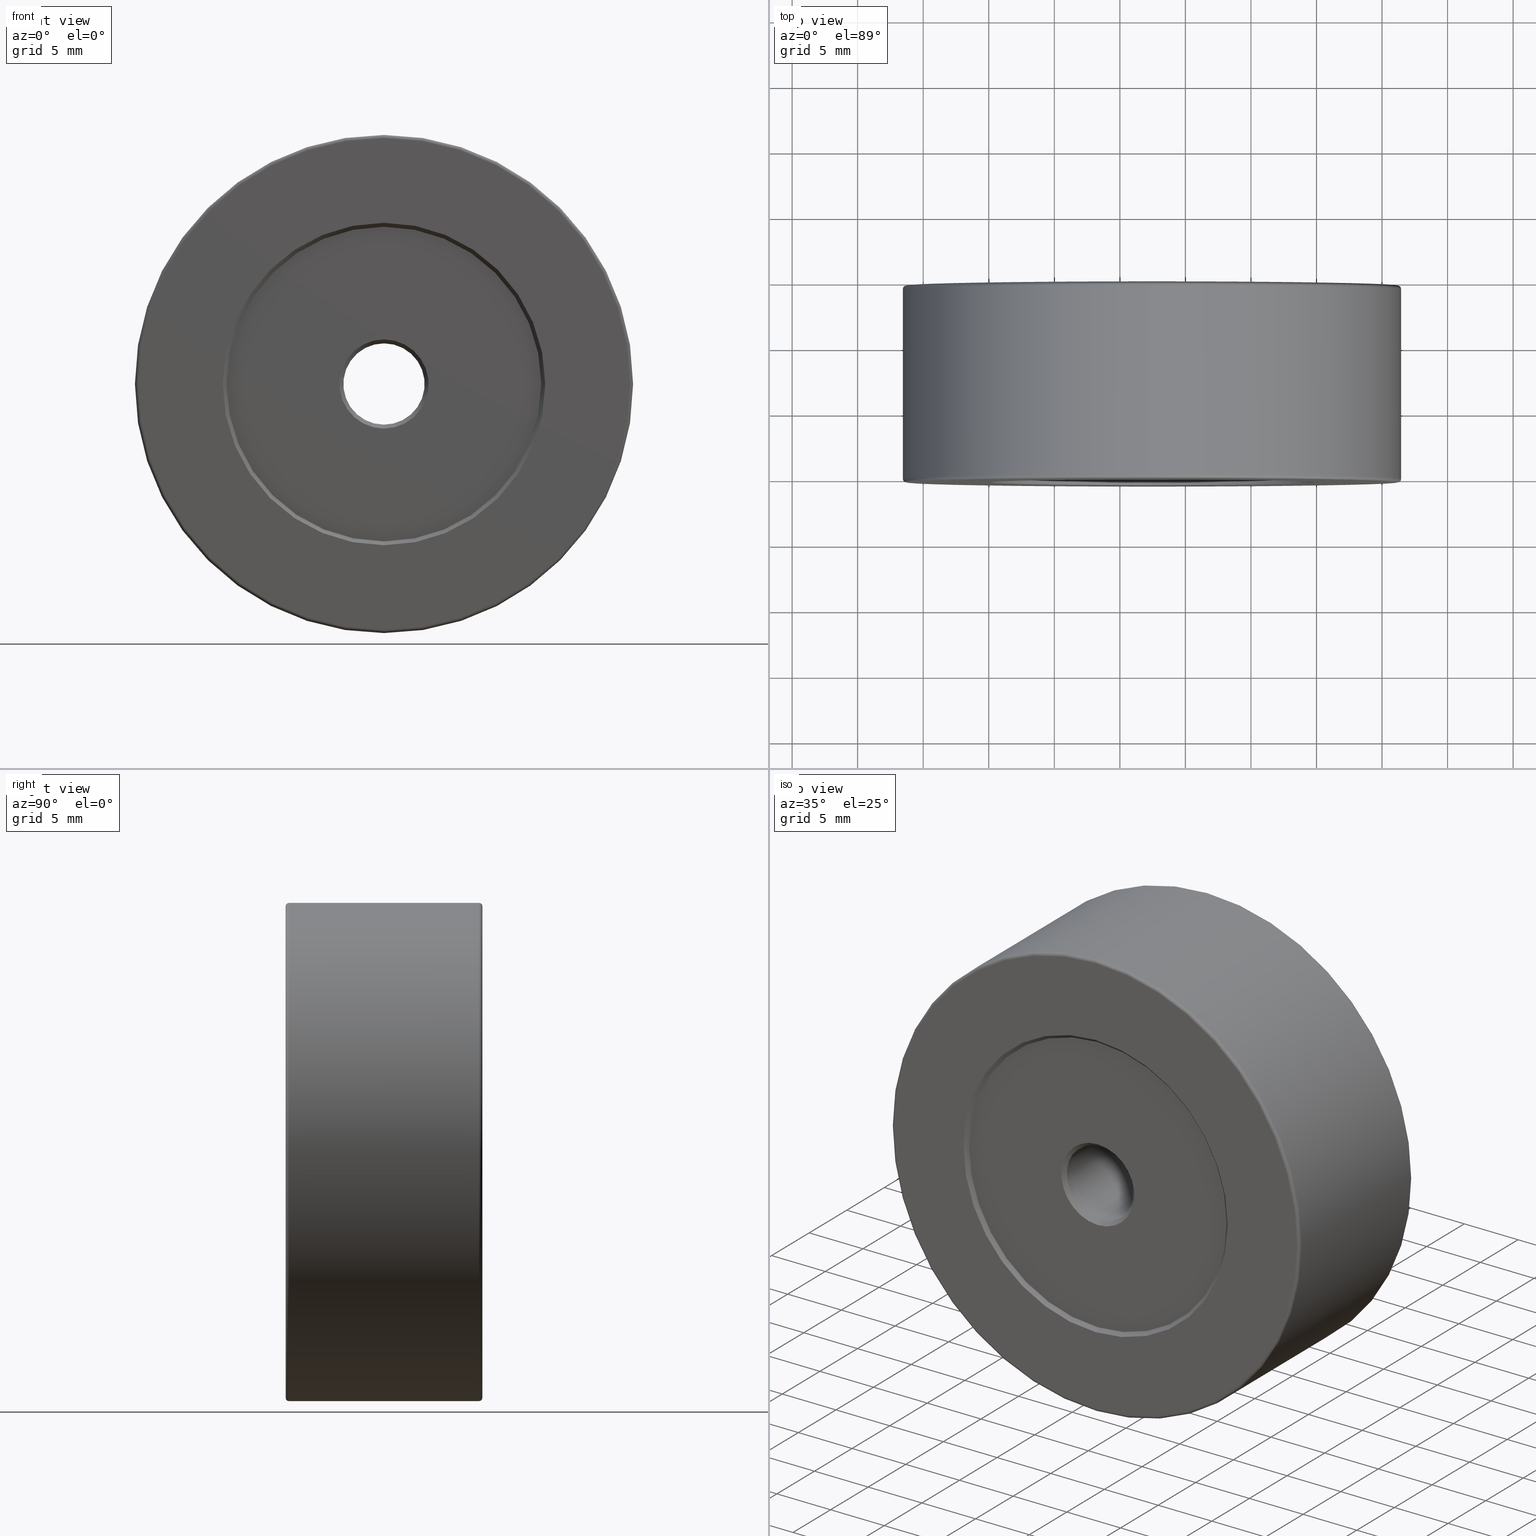
[diagram: canonical four-view strip — front | top / right | iso, engineering-drawing reading convention]
A machine part, canonical four-view strip (front | top / right | iso — engineering-drawing reading convention). The complete STEP part file that produces these views, byte-faithful:
ISO-10303-21;
HEADER;
FILE_DESCRIPTION (( 'STEP AP203' ),
    '1' );
FILE_NAME ('1.4.2.124_ZGH-38-DK15.STEP',
    '2024-04-06T05:22:27',
    ( '' ),
    ( '' ),
    'SwSTEP 2.0',
    'SolidWorks 2021',
    '' );
FILE_SCHEMA (( 'CONFIG_CONTROL_DESIGN' ));
ENDSEC;

DATA;
#1 = ADVANCED_FACE ( 'NONE', ( #130 ), #344, .T. ) ;
#2 = ORIENTED_EDGE ( 'NONE', *, *, #85, .T. ) ;
#3 = FACE_BOUND ( 'NONE', #104, .T. ) ;
#4 = DIRECTION ( 'NONE',  ( -0.000000000000000000, -1.000000000000000000, -0.000000000000000000 ) ) ;
#5 = ORIENTED_EDGE ( 'NONE', *, *, #519, .F. ) ;
#6 = AXIS2_PLACEMENT_3D ( 'NONE', #60, #158, #248 ) ;
#7 = CONICAL_SURFACE ( 'NONE', #289, 12.29999999999999893, 0.7853981633974453924 ) ;
#8 = COORDINATED_UNIVERSAL_TIME_OFFSET ( 8, 0, .AHEAD. ) ;
#9 = AXIS2_PLACEMENT_3D ( 'NONE', #428, #430, #478 ) ;
#10 = ORIENTED_EDGE ( 'NONE', *, *, #272, .F. ) ;
#11 = ADVANCED_FACE ( 'NONE', ( #603 ), #141, .F. ) ;
#12 = CARTESIAN_POINT ( 'NONE',  ( -7.546808913101046734, -10.39359512730272783, 50.29999999999999716 ) ) ;
#13 = DIRECTION ( 'NONE',  ( 0.000000000000000000, 0.000000000000000000, 1.000000000000000000 ) ) ;
#14 = EDGE_LOOP ( 'NONE', ( #203, #436, #388, #584 ) ) ;
#15 = EDGE_CURVE ( 'NONE', #194, #55, #83, .T. ) ;
#16 = AXIS2_PLACEMENT_3D ( 'NONE', #62, #200, #52 ) ;
#17 = DIRECTION ( 'NONE',  ( 0.000000000000000000, 0.000000000000000000, 1.000000000000000000 ) ) ;
#18 = EDGE_CURVE ( 'NONE', #72, #259, #290, .T. ) ;
#19 = EDGE_LOOP ( 'NONE', ( #75, #21, #278, #564 ) ) ;
#20 = CARTESIAN_POINT ( 'NONE',  ( -7.546808913101045846, 4.356404872697271280, 19.25000000000000000 ) ) ;
#21 = ORIENTED_EDGE ( 'NONE', *, *, #611, .T. ) ;
#22 = LINE ( 'NONE', #539, #404 ) ;
#23 = LINE ( 'NONE', #294, #407 ) ;
#24 = EDGE_LOOP ( 'NONE', ( #442, #463, #598, #10 ) ) ;
#25 = CARTESIAN_POINT ( 'NONE',  ( -7.546808913101048510, -10.39359512730272783, 38.00000000000000000 ) ) ;
#26 = AXIS2_PLACEMENT_3D ( 'NONE', #87, #80, #276 ) ;
#27 = CIRCLE ( 'NONE', #128, 0.2500000000000002220 ) ;
#28 = VERTEX_POINT ( 'NONE', #605 ) ;
#29 = CARTESIAN_POINT ( 'NONE',  ( -7.546808913101048510, 4.306404872697271458, 41.39999999999999147 ) ) ;
#30 = DIRECTION ( 'NONE',  ( -1.000000000000000000, 0.000000000000000000, 0.000000000000000000 ) ) ;
#31 = EDGE_CURVE ( 'NONE', #122, #432, #411, .T. ) ;
#32 = DIRECTION ( 'NONE',  ( 0.000000000000000000, 1.000000000000000000, 0.000000000000000000 ) ) ;
#33 = COORDINATED_UNIVERSAL_TIME_OFFSET ( 8, 0, .AHEAD. ) ;
#34 = DIRECTION ( 'NONE',  ( -0.000000000000000000, -1.000000000000000000, -0.000000000000000000 ) ) ;
#35 = DIRECTION ( 'NONE',  ( 0.000000000000000000, -0.7071067811865470176, -0.7071067811865480168 ) ) ;
#36 = COORDINATED_UNIVERSAL_TIME_OFFSET ( 8, 0, .AHEAD. ) ;
#37 = CARTESIAN_POINT ( 'NONE',  ( -7.546808913101048510, 4.606404872697272168, 38.00000000000000000 ) ) ;
#38 = VECTOR ( 'NONE', #195, 1000.000000000000000 ) ;
#39 = ORIENTED_EDGE ( 'NONE', *, *, #66, .F. ) ;
#40 = AXIS2_PLACEMENT_3D ( 'NONE', #364, #4, #472 ) ;
#41 = DIRECTION ( 'NONE',  ( 0.000000000000000000, 0.000000000000000000, 1.000000000000000000 ) ) ;
#42 = CARTESIAN_POINT ( 'NONE',  ( -7.546808913101048510, 4.606404872697272168, 19.00000000000000000 ) ) ;
#43 = PERSON_AND_ORGANIZATION ( #479, #484 ) ;
#44 = DIRECTION ( 'NONE',  ( 0.000000000000000000, -1.000000000000000000, 0.000000000000000000 ) ) ;
#45 = EDGE_CURVE ( 'NONE', #594, #370, #486, .T. ) ;
#46 = CIRCLE ( 'NONE', #98, 12.00000000000000355 ) ;
#47 = ORIENTED_EDGE ( 'NONE', *, *, #115, .F. ) ;
#48 = CARTESIAN_POINT ( 'NONE',  ( -7.546808913101045846, -10.39359512730272783, 19.25000000000000000 ) ) ;
#49 = ORIENTED_EDGE ( 'NONE', *, *, #325, .T. ) ;
#50 = DIRECTION ( 'NONE',  ( 0.000000000000000000, -0.000000000000000000, 1.000000000000000000 ) ) ;
#51 = ORIENTED_EDGE ( 'NONE', *, *, #499, .F. ) ;
#52 = DIRECTION ( 'NONE',  ( 0.000000000000000000, 0.000000000000000000, -1.000000000000000000 ) ) ;
#53 = EDGE_CURVE ( 'NONE', #110, #72, #133, .T. ) ;
#54 = ADVANCED_FACE ( 'NONE', ( #184 ), #359, .T. ) ;
#55 = VERTEX_POINT ( 'NONE', #563 ) ;
#56 = CONICAL_SURFACE ( 'NONE', #559, 12.00000000000000355, 0.7853981633974482790 ) ;
#57 = AXIS2_PLACEMENT_3D ( 'NONE', #198, #493, #571 ) ;
#58 = CARTESIAN_POINT ( 'NONE',  ( -7.546808913101048510, 4.006404872697271635, 34.89999999999999858 ) ) ;
#59 = LOCAL_TIME ( 13, 22, 27.00000000000000000, #548 ) ;
#60 = CARTESIAN_POINT ( 'NONE',  ( -7.546808913101045846, -10.14359512730272783, 19.25000000000000000 ) ) ;
#61 = TOROIDAL_SURFACE ( 'NONE', #460, 18.75000000000000000, 0.2500000000000000000 ) ;
#62 = CARTESIAN_POINT ( 'NONE',  ( -7.546808913101048510, -10.09359512730272712, 38.00000000000000000 ) ) ;
#63 = CARTESIAN_POINT ( 'NONE',  ( -7.546808913101048510, -10.09359512730272712, 38.00000000000000000 ) ) ;
#64 = ORIENTED_EDGE ( 'NONE', *, *, #282, .T. ) ;
#65 = DIRECTION ( 'NONE',  ( -0.000000000000000000, -1.000000000000000000, -0.000000000000000000 ) ) ;
#66 = EDGE_CURVE ( 'NONE', #438, #259, #23, .T. ) ;
#67 = ORIENTED_EDGE ( 'NONE', *, *, #375, .T. ) ;
#68 = LOCAL_TIME ( 13, 22, 27.00000000000000000, #36 ) ;
#69 = DESIGN_CONTEXT ( 'detailed design', #112, 'design' ) ;
#70 = ORIENTED_EDGE ( 'NONE', *, *, #135, .T. ) ;
#71 = DIRECTION ( 'NONE',  ( 0.000000000000000000, 0.000000000000000000, 1.000000000000000000 ) ) ;
#72 = VERTEX_POINT ( 'NONE', #154 ) ;
#73 = APPLICATION_PROTOCOL_DEFINITION ( 'international standard', 'config_control_design', 1994, #253 ) ;
#74 = LINE ( 'NONE', #357, #356 ) ;
#75 = ORIENTED_EDGE ( 'NONE', *, *, #339, .F. ) ;
#76 = CYLINDRICAL_SURFACE ( 'NONE', #577, 3.099999999999998757 ) ;
#77 = EDGE_CURVE ( 'NONE', #345, #351, #394, .T. ) ;
#78 = CARTESIAN_POINT ( 'NONE',  ( -7.546808913101048510, 4.306404872697287445, 50.00000000000000000 ) ) ;
#79 = AXIS2_PLACEMENT_3D ( 'NONE', #280, #145, #562 ) ;
#80 = DIRECTION ( 'NONE',  ( -0.000000000000000000, 1.000000000000000000, -0.000000000000000000 ) ) ;
#81 = DATE_TIME_ROLE ( 'classification_date' ) ;
#82 = FACE_OUTER_BOUND ( 'NONE', #550, .T. ) ;
#83 = LINE ( 'NONE', #553, #288 ) ;
#84 = APPROVAL_ROLE ( '' ) ;
#85 = EDGE_CURVE ( 'NONE', #426, #372, #377, .T. ) ;
#86 = CARTESIAN_POINT ( 'NONE',  ( -7.546808913101045846, 4.606404872697272168, 19.25000000000000000 ) ) ;
#87 = CARTESIAN_POINT ( 'NONE',  ( -7.546808913101048510, -10.39359512730272783, 38.00000000000000000 ) ) ;
#88 = DIRECTION ( 'NONE',  ( 0.000000000000000000, 1.000000000000000000, 0.000000000000000000 ) ) ;
#89 = AXIS2_PLACEMENT_3D ( 'NONE', #269, #32, #453 ) ;
#90 = AXIS2_PLACEMENT_3D ( 'NONE', #363, #555, #191 ) ;
#91 = DIRECTION ( 'NONE',  ( -0.000000000000000000, -1.000000000000000000, -0.000000000000000000 ) ) ;
#92 = AXIS2_PLACEMENT_3D ( 'NONE', #459, #174, #395 ) ;
#93 = DIRECTION ( 'NONE',  ( -0.000000000000000000, 1.000000000000000000, -0.000000000000000000 ) ) ;
#94 = ORIENTED_EDGE ( 'NONE', *, *, #272, .T. ) ;
#95 = APPROVAL_DATE_TIME ( #314, #358 ) ;
#96 = DIRECTION ( 'NONE',  ( 0.000000000000000000, -0.000000000000000000, 1.000000000000000000 ) ) ;
#97 = CARTESIAN_POINT ( 'NONE',  ( -7.546808913101048510, 4.606404872697272168, 38.00000000000000000 ) ) ;
#98 = AXIS2_PLACEMENT_3D ( 'NONE', #540, #494, #264 ) ;
#99 = PLANE ( 'NONE',  #447 ) ;
#100 = EDGE_CURVE ( 'NONE', #370, #594, #142, .T. ) ;
#101 = CARTESIAN_POINT ( 'NONE',  ( -7.546808913101048510, -10.09359512730272712, 38.00000000000000000 ) ) ;
#102 = ADVANCED_FACE ( 'NONE', ( #205 ), #61, .T. ) ;
#103 = LINE ( 'NONE', #12, #511 ) ;
#104 = EDGE_LOOP ( 'NONE', ( #67, #212 ) ) ;
#105 = AXIS2_PLACEMENT_3D ( 'NONE', #208, #162, #342 ) ;
#106 = TOROIDAL_SURFACE ( 'NONE', #546, 18.75000000000000000, 0.2500000000000000000 ) ;
#107 = DIRECTION ( 'NONE',  ( 0.000000000000000000, 1.000000000000000000, 0.000000000000000000 ) ) ;
#108 = DIRECTION ( 'NONE',  ( 0.000000000000000000, 1.000000000000000000, 0.000000000000000000 ) ) ;
#109 = AXIS2_PLACEMENT_3D ( 'NONE', #387, #572, #201 ) ;
#110 = VERTEX_POINT ( 'NONE', #578 ) ;
#111 = EDGE_CURVE ( 'NONE', #516, #576, #508, .T. ) ;
#112 = APPLICATION_CONTEXT ( 'configuration controlled 3d designs of mechanical parts and assemblies' ) ;
#113 = DIRECTION ( 'NONE',  ( -0.000000000000000000, 1.000000000000000000, -0.000000000000000000 ) ) ;
#114 = ORIENTED_EDGE ( 'NONE', *, *, #45, .T. ) ;
#115 = EDGE_CURVE ( 'NONE', #361, #372, #103, .T. ) ;
#116 = CARTESIAN_POINT ( 'NONE',  ( -7.546808913101048510, -9.793595127302728187, 38.00000000000000000 ) ) ;
#117 = ORIENTED_EDGE ( 'NONE', *, *, #220, .T. ) ;
#118 = AXIS2_PLACEMENT_3D ( 'NONE', #171, #350, #306 ) ;
#119 = CIRCLE ( 'NONE', #242, 0.2500000000000002220 ) ;
#120 = ORIENTED_EDGE ( 'NONE', *, *, #368, .T. ) ;
#121 = CARTESIAN_POINT ( 'NONE',  ( -7.546808913101046734, -10.09359512730272712, 50.00000000000000000 ) ) ;
#122 = VERTEX_POINT ( 'NONE', #583 ) ;
#123 = DIRECTION ( 'NONE',  ( 0.000000000000000000, 0.000000000000000000, 1.000000000000000000 ) ) ;
#124 = CARTESIAN_POINT ( 'NONE',  ( -7.546808913101048510, 4.356404872697271280, 38.00000000000000000 ) ) ;
#125 = ORIENTED_EDGE ( 'NONE', *, *, #401, .T. ) ;
#126 = APPLICATION_PROTOCOL_DEFINITION ( 'international standard', 'config_control_design', 1994, #112 ) ;
#127 = DIRECTION ( 'NONE',  ( -0.000000000000000000, -1.000000000000000000, -0.000000000000000000 ) ) ;
#128 = AXIS2_PLACEMENT_3D ( 'NONE', #448, #30, #469 ) ;
#129 = ADVANCED_FACE ( 'NONE', ( #526 ), #275, .F. ) ;
#130 = FACE_OUTER_BOUND ( 'NONE', #308, .T. ) ;
#131 = EDGE_CURVE ( 'NONE', #467, #72, #347, .T. ) ;
#132 = LINE ( 'NONE', #78, #261 ) ;
#133 = LINE ( 'NONE', #42, #608 ) ;
#134 = PERSON_AND_ORGANIZATION_ROLE ( 'classification_officer' ) ;
#135 = EDGE_CURVE ( 'NONE', #438, #110, #217, .T. ) ;
#136 = DIRECTION ( 'NONE',  ( 0.000000000000000000, 0.000000000000000000, 1.000000000000000000 ) ) ;
#137 = CARTESIAN_POINT ( 'NONE',  ( -7.546808913101048510, -10.09359512730272712, 34.60000000000000142 ) ) ;
#138 = DIRECTION ( 'NONE',  ( 0.000000000000000000, 0.000000000000000000, -1.000000000000000000 ) ) ;
#139 = CONICAL_SURFACE ( 'NONE', #105, 3.400000000000000355, 0.7853981633974490562 ) ;
#140 = AXIS2_PLACEMENT_3D ( 'NONE', #566, #147, #585 ) ;
#141 = CYLINDRICAL_SURFACE ( 'NONE', #26, 3.099999999999998757 ) ;
#142 = CIRCLE ( 'NONE', #148, 3.399999999999993250 ) ;
#143 = CC_DESIGN_DATE_AND_TIME_ASSIGNMENT ( #599, #144, ( #193 ) ) ;
#144 = DATE_TIME_ROLE ( 'creation_date' ) ;
#145 = DIRECTION ( 'NONE',  ( 0.000000000000000000, 1.000000000000000000, 0.000000000000000000 ) ) ;
#146 = ORIENTED_EDGE ( 'NONE', *, *, #31, .F. ) ;
#147 = DIRECTION ( 'NONE',  ( -0.000000000000000000, -1.000000000000000000, -0.000000000000000000 ) ) ;
#148 = AXIS2_PLACEMENT_3D ( 'NONE', #301, #331, #13 ) ;
#149 = FACE_OUTER_BOUND ( 'NONE', #218, .T. ) ;
#150 = EDGE_CURVE ( 'NONE', #110, #351, #119, .T. ) ;
#151 = SHELL_BASED_SURFACE_MODEL ( 'NONE', ( #415 ) );
#152 = DIRECTION ( 'NONE',  ( 0.000000000000000000, 1.000000000000000000, 0.000000000000000000 ) ) ;
#153 = DIRECTION ( 'NONE',  ( 8.659560562354837948E-17, 0.7071067811865552333, -0.7071067811865398012 ) ) ;
#154 = CARTESIAN_POINT ( 'NONE',  ( -7.546808913101048510, -10.14359512730272783, 19.00000000000000000 ) ) ;
#155 = ADVANCED_FACE ( 'NONE', ( #340 ), #56, .F. ) ;
#156 = VERTEX_POINT ( 'NONE', #246 ) ;
#157 = VECTOR ( 'NONE', #93, 1000.000000000000000 ) ;
#158 = DIRECTION ( 'NONE',  ( 1.000000000000000000, -0.000000000000000000, 1.224646799147353207E-16 ) ) ;
#159 = ORIENTED_EDGE ( 'NONE', *, *, #77, .T. ) ;
#160 = DIRECTION ( 'NONE',  ( 0.000000000000000000, 0.000000000000000000, -1.000000000000000000 ) ) ;
#161 = ORIENTED_EDGE ( 'NONE', *, *, #18, .T. ) ;
#162 = DIRECTION ( 'NONE',  ( -0.000000000000000000, -1.000000000000000000, -0.000000000000000000 ) ) ;
#163 = ORIENTED_EDGE ( 'NONE', *, *, #443, .F. ) ;
#164 = VECTOR ( 'NONE', #35, 1000.000000000000000 ) ;
#165 = CIRCLE ( 'NONE', #90, 12.29999999999998472 ) ;
#166 = CARTESIAN_POINT ( 'NONE',  ( -7.546808913101048510, -10.09359512730272712, 25.99999999999999645 ) ) ;
#167 = CC_DESIGN_APPROVAL ( #358, ( #435 ) ) ;
#168 = CIRCLE ( 'NONE', #245, 3.099999999999998757 ) ;
#169 = EDGE_LOOP ( 'NONE', ( #240, #541, #229, #535 ) ) ;
#170 = DATE_AND_TIME ( #332, #204 ) ;
#171 = CARTESIAN_POINT ( 'NONE',  ( -7.546808913101048510, 4.606404872697272168, 38.00000000000000000 ) ) ;
#172 = EDGE_LOOP ( 'NONE', ( #305, #64 ) ) ;
#173 = DIRECTION ( 'NONE',  ( -0.000000000000000000, 1.000000000000000000, -0.000000000000000000 ) ) ;
#174 = DIRECTION ( 'NONE',  ( -0.000000000000000000, 1.000000000000000000, -0.000000000000000000 ) ) ;
#175 = ORIENTED_EDGE ( 'NONE', *, *, #31, .T. ) ;
#176 = ADVANCED_FACE ( 'NONE', ( #252 ), #334, .F. ) ;
#177 = DIRECTION ( 'NONE',  ( 0.000000000000000000, 1.000000000000000000, 0.000000000000000000 ) ) ;
#178 = AXIS2_PLACEMENT_3D ( 'NONE', #97, #418, #371 ) ;
#179 = CC_DESIGN_SECURITY_CLASSIFICATION ( #435, ( #189 ) ) ;
#180 = EDGE_LOOP ( 'NONE', ( #114, #421 ) ) ;
#181 = ORIENTED_EDGE ( 'NONE', *, *, #309, .T. ) ;
#182 = APPROVAL_ROLE ( '' ) ;
#183 = CARTESIAN_POINT ( 'NONE',  ( -7.546808913101048510, -10.39359512730272783, 38.00000000000000000 ) ) ;
#184 = FACE_OUTER_BOUND ( 'NONE', #322, .T. ) ;
#185 = APPROVAL ( #412, 'δָ��' ) ;
#186 = CARTESIAN_POINT ( 'NONE',  ( -7.546808913101048510, -10.39359512730272783, 25.69999999999999929 ) ) ;
#187 = CONICAL_SURFACE ( 'NONE', #300, 12.29999999999999893, 0.7853981633974453924 ) ;
#188 = CIRCLE ( 'NONE', #366, 12.29999999999998472 ) ;
#189 = PRODUCT_DEFINITION_FORMATION_WITH_SPECIFIED_SOURCE ( '�κ�', '', #503, .NOT_KNOWN. ) ;
#190 = AXIS2_PLACEMENT_3D ( 'NONE', #63, #113, #532 ) ;
#191 = DIRECTION ( 'NONE',  ( 0.000000000000000000, 0.000000000000000000, 1.000000000000000000 ) ) ;
#192 = DIRECTION ( 'NONE',  ( 0.000000000000000000, 1.000000000000000000, 0.000000000000000000 ) ) ;
#193 = PRODUCT_DEFINITION ( 'δ֪', '', #189, #69 ) ;
#194 = VERTEX_POINT ( 'NONE', #255 ) ;
#195 = DIRECTION ( 'NONE',  ( 0.000000000000000000, -0.7071067811865495711, -0.7071067811865454633 ) ) ;
#196 = CONICAL_SURFACE ( 'NONE', #527, 3.099999999999998757, 0.7853981633974375098 ) ;
#197 = AXIS2_PLACEMENT_3D ( 'NONE', #202, #108, #475 ) ;
#198 = CARTESIAN_POINT ( 'NONE',  ( 0.000000000000000000, 0.000000000000000000, 0.000000000000000000 ) ) ;
#199 = EDGE_LOOP ( 'NONE', ( #429, #256, #5, #293 ) ) ;
#200 = DIRECTION ( 'NONE',  ( -0.000000000000000000, 1.000000000000000000, -0.000000000000000000 ) ) ;
#201 = DIRECTION ( 'NONE',  ( 0.000000000000000000, 0.000000000000000000, 1.000000000000000000 ) ) ;
#202 = CARTESIAN_POINT ( 'NONE',  ( -7.546808913101048510, 4.306404872697287445, 38.00000000000000000 ) ) ;
#203 = ORIENTED_EDGE ( 'NONE', *, *, #611, .F. ) ;
#204 = LOCAL_TIME ( 13, 22, 27.00000000000000000, #8 ) ;
#205 = FACE_OUTER_BOUND ( 'NONE', #285, .T. ) ;
#206 = ORIENTED_EDGE ( 'NONE', *, *, #325, .F. ) ;
#207 = EDGE_CURVE ( 'NONE', #349, #361, #367, .T. ) ;
#208 = CARTESIAN_POINT ( 'NONE',  ( -7.546808913101048510, -10.09359512730272712, 38.00000000000000000 ) ) ;
#209 = ORIENTED_EDGE ( 'NONE', *, *, #15, .F. ) ;
#210 = DIRECTION ( 'NONE',  ( 0.000000000000000000, 0.000000000000000000, 1.000000000000000000 ) ) ;
#211 = DIRECTION ( 'NONE',  ( 8.659560562354908206E-17, -0.7071067811865495711, 0.7071067811865454633 ) ) ;
#212 = ORIENTED_EDGE ( 'NONE', *, *, #487, .T. ) ;
#213 = APPROVAL_ROLE ( '' ) ;
#214 = AXIS2_PLACEMENT_3D ( 'NONE', #287, #337, #523 ) ;
#215 = AXIS2_PLACEMENT_3D ( 'NONE', #552, #88, #273 ) ;
#216 = CARTESIAN_POINT ( 'NONE',  ( -7.546808913101048510, -10.39359512730272783, 38.00000000000000000 ) ) ;
#217 = CIRCLE ( 'NONE', #228, 18.99999999999999645 ) ;
#218 = EDGE_LOOP ( 'NONE', ( #209, #445, #175, #477 ) ) ;
#219 = DIRECTION ( 'NONE',  ( 8.659560562354932858E-17, 0.7071067811865474617, -0.7071067811865474617 ) ) ;
#220 = EDGE_CURVE ( 'NONE', #122, #194, #476, .T. ) ;
#221 = ORIENTED_EDGE ( 'NONE', *, *, #565, .T. ) ;
#222 = CARTESIAN_POINT ( 'NONE',  ( -7.546808913101048510, 4.606404872697272168, 50.29999999999998295 ) ) ;
#223 = ADVANCED_FACE ( 'NONE', ( #437 ), #139, .F. ) ;
#224 = CARTESIAN_POINT ( 'NONE',  ( -7.546808913101048510, 4.306404872697271458, 38.00000000000000000 ) ) ;
#225 = PERSON_AND_ORGANIZATION ( #479, #484 ) ;
#226 = DIRECTION ( 'NONE',  ( 0.000000000000000000, 0.000000000000000000, -1.000000000000000000 ) ) ;
#227 = APPROVAL_PERSON_ORGANIZATION ( #439, #414, #213 ) ;
#228 = AXIS2_PLACEMENT_3D ( 'NONE', #574, #65, #580 ) ;
#229 = ORIENTED_EDGE ( 'NONE', *, *, #519, .T. ) ;
#230 = DIRECTION ( 'NONE',  ( 0.000000000000000000, 0.000000000000000000, 1.000000000000000000 ) ) ;
#231 = DIRECTION ( 'NONE',  ( 0.000000000000000000, 1.000000000000000000, 0.000000000000000000 ) ) ;
#232 = DIRECTION ( 'NONE',  ( 0.000000000000000000, 0.000000000000000000, 1.000000000000000000 ) ) ;
#233 = CARTESIAN_POINT ( 'NONE',  ( -7.546808913101048510, -10.09359512730272712, 34.60000000000000142 ) ) ;
#234 = ORIENTED_EDGE ( 'NONE', *, *, #471, .F. ) ;
#235 = CC_DESIGN_DATE_AND_TIME_ASSIGNMENT ( #318, #81, ( #435 ) ) ;
#236 = DIRECTION ( 'NONE',  ( 0.000000000000000000, 1.000000000000000000, 0.000000000000000000 ) ) ;
#237 = EDGE_CURVE ( 'NONE', #516, #384, #441, .T. ) ;
#238 = EDGE_LOOP ( 'NONE', ( #221, #579 ) ) ;
#239 = FACE_OUTER_BOUND ( 'NONE', #302, .T. ) ;
#240 = ORIENTED_EDGE ( 'NONE', *, *, #262, .T. ) ;
#241 = CARTESIAN_POINT ( 'NONE',  ( -7.546808913101048510, -10.39359512730272783, 38.00000000000000000 ) ) ;
#242 = AXIS2_PLACEMENT_3D ( 'NONE', #20, #385, #160 ) ;
#243 = ORIENTED_EDGE ( 'NONE', *, *, #150, .F. ) ;
#244 = LOCAL_TIME ( 13, 22, 27.00000000000000000, #267 ) ;
#245 = AXIS2_PLACEMENT_3D ( 'NONE', #398, #402, #360 ) ;
#246 = CARTESIAN_POINT ( 'NONE',  ( -7.546808913101048510, 4.006404872697271635, 41.09999999999999432 ) ) ;
#247 = ADVANCED_FACE ( 'NONE', ( #82 ), #187, .F. ) ;
#248 = DIRECTION ( 'NONE',  ( 0.000000000000000000, 0.000000000000000000, -1.000000000000000000 ) ) ;
#249 = VERTEX_POINT ( 'NONE', #222 ) ;
#250 = ORIENTED_EDGE ( 'NONE', *, *, #487, .F. ) ;
#251 = CIRCLE ( 'NONE', #597, 12.00000000000000355 ) ;
#252 = FACE_OUTER_BOUND ( 'NONE', #14, .T. ) ;
#253 = APPLICATION_CONTEXT ( 'configuration controlled 3d designs of mechanical parts and assemblies' ) ;
#254 = ORIENTED_EDGE ( 'NONE', *, *, #15, .T. ) ;
#255 = CARTESIAN_POINT ( 'NONE',  ( -7.546808913101048510, -9.793595127302728187, 41.09999999999999432 ) ) ;
#256 = ORIENTED_EDGE ( 'NONE', *, *, #131, .T. ) ;
#257 = MECHANICAL_CONTEXT ( 'NONE', #253, 'mechanical' ) ;
#258 = DIRECTION ( 'NONE',  ( 0.000000000000000000, 0.000000000000000000, -1.000000000000000000 ) ) ;
#259 = VERTEX_POINT ( 'NONE', #595 ) ;
#260 =( NAMED_UNIT ( * ) PLANE_ANGLE_UNIT ( ) SI_UNIT ( $, .RADIAN. ) );
#261 = VECTOR ( 'NONE', #500, 1000.000000000000114 ) ;
#262 = EDGE_CURVE ( 'NONE', #110, #438, #536, .T. ) ;
#263 = CIRCLE ( 'NONE', #457, 0.2500000000000002220 ) ;
#264 = DIRECTION ( 'NONE',  ( 0.000000000000000000, 0.000000000000000000, 1.000000000000000000 ) ) ;
#265 = AXIS2_PLACEMENT_3D ( 'NONE', #224, #91, #461 ) ;
#266 = DIRECTION ( 'NONE',  ( 8.659560562354939021E-17, -0.7071067811865470176, 0.7071067811865480168 ) ) ;
#267 = COORDINATED_UNIVERSAL_TIME_OFFSET ( 8, 0, .AHEAD. ) ;
#268 = CARTESIAN_POINT ( 'NONE',  ( -7.546808913101046734, 4.306404872697287445, 25.99999999999999645 ) ) ;
#269 = CARTESIAN_POINT ( 'NONE',  ( -7.546808913101048510, -10.14359512730272783, 38.00000000000000000 ) ) ;
#270 = PERSON_AND_ORGANIZATION_ROLE ( 'creator' ) ;
#271 = CARTESIAN_POINT ( 'NONE',  ( -7.546808913101048510, 4.306404872697271458, 34.60000000000000853 ) ) ;
#272 = EDGE_CURVE ( 'NONE', #576, #249, #132, .T. ) ;
#273 = DIRECTION ( 'NONE',  ( 0.000000000000000000, 0.000000000000000000, 1.000000000000000000 ) ) ;
#274 = CONICAL_SURFACE ( 'NONE', #434, 3.400000000000000355, 0.7853981633974490562 ) ;
#275 = CONICAL_SURFACE ( 'NONE', #197, 12.00000000000000355, 0.7853981633974482790 ) ;
#276 = DIRECTION ( 'NONE',  ( 0.000000000000000000, 0.000000000000000000, 1.000000000000000000 ) ) ;
#277 = FACE_OUTER_BOUND ( 'NONE', #238, .T. ) ;
#278 = ORIENTED_EDGE ( 'NONE', *, *, #45, .F. ) ;
#279 = DATE_AND_TIME ( #464, #59 ) ;
#280 = CARTESIAN_POINT ( 'NONE',  ( -7.546808913101048510, -10.14359512730272783, 38.00000000000000000 ) ) ;
#281 = CARTESIAN_POINT ( 'NONE',  ( -7.546808913101048510, -10.09359512730272712, 38.00000000000000000 ) ) ;
#282 = EDGE_CURVE ( 'NONE', #55, #432, #570, .T. ) ;
#283 = DIRECTION ( 'NONE',  ( 0.000000000000000000, 1.000000000000000000, 0.000000000000000000 ) ) ;
#284 = CARTESIAN_POINT ( 'NONE',  ( -7.546808913101048510, 4.006404872697271635, 38.00000000000000000 ) ) ;
#285 = EDGE_LOOP ( 'NONE', ( #243, #298, #557, #381 ) ) ;
#286 = PERSON_AND_ORGANIZATION_ROLE ( 'creator' ) ;
#287 = CARTESIAN_POINT ( 'NONE',  ( -7.546808913101048510, 4.606404872697272168, 38.00000000000000000 ) ) ;
#288 = VECTOR ( 'NONE', #266, 1000.000000000000000 ) ;
#289 = AXIS2_PLACEMENT_3D ( 'NONE', #216, #491, #258 ) ;
#290 = CIRCLE ( 'NONE', #89, 18.99999999999999645 ) ;
#291 = CARTESIAN_POINT ( 'NONE',  ( -7.546808913101048510, 4.306404872697271458, 38.00000000000000000 ) ) ;
#292 = CARTESIAN_POINT ( 'NONE',  ( -7.546808913101048510, 4.306404872697287445, 38.00000000000000000 ) ) ;
#293 = ORIENTED_EDGE ( 'NONE', *, *, #408, .F. ) ;
#294 = CARTESIAN_POINT ( 'NONE',  ( -7.546808913101045846, 4.606404872697272168, 56.99999999999999289 ) ) ;
#295 = CC_DESIGN_PERSON_AND_ORGANIZATION_ASSIGNMENT ( #352, #524, ( #503 ) ) ;
#296 = EDGE_LOOP ( 'NONE', ( #456, #512, #480, #163 ) ) ;
#297 = DIRECTION ( 'NONE',  ( -0.000000000000000000, -1.000000000000000000, -0.000000000000000000 ) ) ;
#298 = ORIENTED_EDGE ( 'NONE', *, *, #135, .F. ) ;
#299 = AXIS2_PLACEMENT_3D ( 'NONE', #183, #283, #510 ) ;
#300 = AXIS2_PLACEMENT_3D ( 'NONE', #25, #34, #226 ) ;
#301 = CARTESIAN_POINT ( 'NONE',  ( -7.546808913101048510, 4.306404872697271458, 38.00000000000000000 ) ) ;
#302 = EDGE_LOOP ( 'NONE', ( #159, #313 ) ) ;
#303 = DIRECTION ( 'NONE',  ( 0.000000000000000000, 0.000000000000000000, -1.000000000000000000 ) ) ;
#304 = FACE_OUTER_BOUND ( 'NONE', #296, .T. ) ;
#305 = ORIENTED_EDGE ( 'NONE', *, *, #556, .T. ) ;
#306 = DIRECTION ( 'NONE',  ( 0.000000000000000000, 0.000000000000000000, 1.000000000000000000 ) ) ;
#307 = PRODUCT_RELATED_PRODUCT_CATEGORY ( 'detail', '', ( #503 ) ) ;
#308 = EDGE_LOOP ( 'NONE', ( #386, #399, #336, #234 ) ) ;
#309 = EDGE_CURVE ( 'NONE', #156, #521, #168, .T. ) ;
#310 = AXIS2_PLACEMENT_3D ( 'NONE', #444, #177, #454 ) ;
#311 = DIRECTION ( 'NONE',  ( -0.000000000000000000, -1.000000000000000000, -0.000000000000000000 ) ) ;
#312 = FACE_OUTER_BOUND ( 'NONE', #199, .T. ) ;
#313 = ORIENTED_EDGE ( 'NONE', *, *, #396, .T. ) ;
#314 = DATE_AND_TIME ( #362, #244 ) ;
#315 = EDGE_CURVE ( 'NONE', #372, #426, #590, .T. ) ;
#316 = FACE_OUTER_BOUND ( 'NONE', #485, .T. ) ;
#317 = ORIENTED_EDGE ( 'NONE', *, *, #543, .T. ) ;
#318 = DATE_AND_TIME ( #561, #549 ) ;
#319 = AXIS2_PLACEMENT_3D ( 'NONE', #116, #297, #483 ) ;
#320 = LINE ( 'NONE', #369, #157 ) ;
#321 =( GEOMETRIC_REPRESENTATION_CONTEXT ( 3 ) GLOBAL_UNCERTAINTY_ASSIGNED_CONTEXT ( ( #343 ) ) GLOBAL_UNIT_ASSIGNED_CONTEXT ( ( #379, #260, #389 ) ) REPRESENTATION_CONTEXT ( 'NONE', 'WORKASPACE' ) );
#322 = EDGE_LOOP ( 'NONE', ( #39, #70, #507, #161 ) ) ;
#323 = APPROVAL_DATE_TIME ( #279, #185 ) ;
#324 = CYLINDRICAL_SURFACE ( 'NONE', #178, 19.00000000000000000 ) ;
#325 = EDGE_CURVE ( 'NONE', #122, #521, #74, .T. ) ;
#326 = CARTESIAN_POINT ( 'NONE',  ( -7.546808913101046734, 4.306404872697271458, 25.99999999999999645 ) ) ;
#327 = ADVANCED_FACE ( 'NONE', ( #312 ), #106, .T. ) ;
#328 = CARTESIAN_POINT ( 'NONE',  ( -7.546808913101048510, -10.39359512730272783, 25.69999999999999929 ) ) ;
#329 = DIRECTION ( 'NONE',  ( -1.000000000000000000, 0.000000000000000000, 0.000000000000000000 ) ) ;
#330 = FACE_OUTER_BOUND ( 'NONE', #567, .T. ) ;
#331 = DIRECTION ( 'NONE',  ( -0.000000000000000000, -1.000000000000000000, -0.000000000000000000 ) ) ;
#332 = CALENDAR_DATE ( 2024, 6, 4 ) ;
#333 = DIRECTION ( 'NONE',  ( -0.000000000000000000, -1.000000000000000000, -0.000000000000000000 ) ) ;
#334 = CONICAL_SURFACE ( 'NONE', #9, 3.099999999999998757, 0.7853981633974375098 ) ;
#335 = CIRCLE ( 'NONE', #79, 18.99999999999999645 ) ;
#336 = ORIENTED_EDGE ( 'NONE', *, *, #77, .F. ) ;
#337 = DIRECTION ( 'NONE',  ( 0.000000000000000000, 1.000000000000000000, 0.000000000000000000 ) ) ;
#338 = ORIENTED_EDGE ( 'NONE', *, *, #339, .T. ) ;
#339 = EDGE_CURVE ( 'NONE', #521, #156, #423, .T. ) ;
#340 = FACE_OUTER_BOUND ( 'NONE', #489, .T. ) ;
#341 = ORIENTED_EDGE ( 'NONE', *, *, #401, .F. ) ;
#342 = DIRECTION ( 'NONE',  ( 0.000000000000000000, 0.000000000000000000, -1.000000000000000000 ) ) ;
#343 = UNCERTAINTY_MEASURE_WITH_UNIT (LENGTH_MEASURE( 1.000000000000000082E-05 ), #379, 'distance_accuracy_value', 'NONE');
#344 = TOROIDAL_SURFACE ( 'NONE', #528, 18.75000000000000000, 0.2500000000000000000 ) ;
#345 = VERTEX_POINT ( 'NONE', #591 ) ;
#346 = AXIS2_PLACEMENT_3D ( 'NONE', #451, #311, #136 ) ;
#347 = CIRCLE ( 'NONE', #6, 0.2500000000000002220 ) ;
#348 = CARTESIAN_POINT ( 'NONE',  ( -7.546808913101046734, -10.39359512730272783, 50.29999999999999716 ) ) ;
#349 = VERTEX_POINT ( 'NONE', #166 ) ;
#350 = DIRECTION ( 'NONE',  ( 0.000000000000000000, 1.000000000000000000, 0.000000000000000000 ) ) ;
#351 = VERTEX_POINT ( 'NONE', #86 ) ;
#352 = PERSON_AND_ORGANIZATION ( #479, #484 ) ;
#353 = DIRECTION ( 'NONE',  ( 0.000000000000000000, 1.000000000000000000, 0.000000000000000000 ) ) ;
#354 = EDGE_LOOP ( 'NONE', ( #2, #589 ) ) ;
#355 = PERSON_AND_ORGANIZATION ( #479, #484 ) ;
#356 = VECTOR ( 'NONE', #390, 1000.000000000000000 ) ;
#357 = CARTESIAN_POINT ( 'NONE',  ( -7.546808913101048510, -10.39359512730272783, 34.89999999999999858 ) ) ;
#358 = APPROVAL ( #400, 'δָ��' ) ;
#359 = CYLINDRICAL_SURFACE ( 'NONE', #40, 19.00000000000000000 ) ;
#360 = DIRECTION ( 'NONE',  ( 0.000000000000000000, 0.000000000000000000, 1.000000000000000000 ) ) ;
#361 = VERTEX_POINT ( 'NONE', #121 ) ;
#362 = CALENDAR_DATE ( 2024, 6, 4 ) ;
#363 = CARTESIAN_POINT ( 'NONE',  ( -7.546808913101048510, 4.606404872697272168, 38.00000000000000000 ) ) ;
#364 = CARTESIAN_POINT ( 'NONE',  ( -7.546808913101048510, 4.606404872697272168, 38.00000000000000000 ) ) ;
#365 = FACE_BOUND ( 'NONE', #180, .T. ) ;
#366 = AXIS2_PLACEMENT_3D ( 'NONE', #37, #544, #600 ) ;
#367 = CIRCLE ( 'NONE', #190, 12.00000000000000355 ) ;
#368 = EDGE_CURVE ( 'NONE', #467, #28, #534, .T. ) ;
#369 = CARTESIAN_POINT ( 'NONE',  ( -7.546808913101048510, -10.39359512730272783, 41.09999999999999432 ) ) ;
#370 = VERTEX_POINT ( 'NONE', #271 ) ;
#371 = DIRECTION ( 'NONE',  ( 0.000000000000000000, 0.000000000000000000, -1.000000000000000000 ) ) ;
#372 = VERTEX_POINT ( 'NONE', #348 ) ;
#373 = FACE_BOUND ( 'NONE', #172, .T. ) ;
#374 = AXIS2_PLACEMENT_3D ( 'NONE', #101, #44, #465 ) ;
#375 = EDGE_CURVE ( 'NONE', #249, #384, #188, .T. ) ;
#376 = CC_DESIGN_PERSON_AND_ORGANIZATION_ASSIGNMENT ( #355, #134, ( #435 ) ) ;
#377 = CIRCLE ( 'NONE', #425, 12.29999999999999893 ) ;
#378 = APPROVAL_DATE_TIME ( #170, #414 ) ;
#379 =( LENGTH_UNIT ( ) NAMED_UNIT ( * ) SI_UNIT ( .MILLI., .METRE. ) );
#380 = DIRECTION ( 'NONE',  ( 0.000000000000000000, 1.000000000000000000, 0.000000000000000000 ) ) ;
#381 = ORIENTED_EDGE ( 'NONE', *, *, #396, .F. ) ;
#382 = DIRECTION ( 'NONE',  ( 0.000000000000000000, 1.000000000000000000, 0.000000000000000000 ) ) ;
#383 = ADVANCED_FACE ( 'NONE', ( #316 ), #498, .T. ) ;
#384 = VERTEX_POINT ( 'NONE', #537 ) ;
#385 = DIRECTION ( 'NONE',  ( 1.000000000000000000, -0.000000000000000000, 1.224646799147353207E-16 ) ) ;
#386 = ORIENTED_EDGE ( 'NONE', *, *, #262, .F. ) ;
#387 = CARTESIAN_POINT ( 'NONE',  ( -7.546808913101048510, 4.306404872697271458, 38.00000000000000000 ) ) ;
#388 = ORIENTED_EDGE ( 'NONE', *, *, #601, .T. ) ;
#389 =( NAMED_UNIT ( * ) SI_UNIT ( $, .STERADIAN. ) SOLID_ANGLE_UNIT ( ) );
#390 = DIRECTION ( 'NONE',  ( -0.000000000000000000, 1.000000000000000000, -0.000000000000000000 ) ) ;
#391 = ADVANCED_FACE ( 'NONE', ( #304 ), #7, .F. ) ;
#392 = ORIENTED_EDGE ( 'NONE', *, *, #207, .F. ) ;
#393 = CIRCLE ( 'NONE', #118, 18.74999999999999645 ) ;
#394 = CIRCLE ( 'NONE', #214, 18.74999999999999645 ) ;
#395 = DIRECTION ( 'NONE',  ( 0.000000000000000000, 0.000000000000000000, -1.000000000000000000 ) ) ;
#396 = EDGE_CURVE ( 'NONE', #351, #345, #393, .T. ) ;
#397 = ORIENTED_EDGE ( 'NONE', *, *, #543, .F. ) ;
#398 = CARTESIAN_POINT ( 'NONE',  ( -7.546808913101048510, 4.006404872697271635, 38.00000000000000000 ) ) ;
#399 = ORIENTED_EDGE ( 'NONE', *, *, #150, .T. ) ;
#400 = APPROVAL_STATUS ( 'not_yet_approved' ) ;
#401 = EDGE_CURVE ( 'NONE', #361, #349, #46, .T. ) ;
#402 = DIRECTION ( 'NONE',  ( 0.000000000000000000, 1.000000000000000000, 0.000000000000000000 ) ) ;
#403 = DIRECTION ( 'NONE',  ( -0.000000000000000000, -1.000000000000000000, -0.000000000000000000 ) ) ;
#404 = VECTOR ( 'NONE', #542, 1000.000000000000114 ) ;
#405 = APPROVAL_PERSON_ORGANIZATION ( #606, #358, #182 ) ;
#406 = DIRECTION ( 'NONE',  ( 0.000000000000000000, 1.000000000000000000, 0.000000000000000000 ) ) ;
#407 = VECTOR ( 'NONE', #333, 1000.000000000000000 ) ;
#408 = EDGE_CURVE ( 'NONE', #28, #259, #27, .T. ) ;
#409 = ORIENTED_EDGE ( 'NONE', *, *, #556, .F. ) ;
#410 = FACE_OUTER_BOUND ( 'NONE', #538, .T. ) ;
#411 = LINE ( 'NONE', #137, #164 ) ;
#412 = APPROVAL_STATUS ( 'not_yet_approved' ) ;
#413 = CARTESIAN_POINT ( 'NONE',  ( -7.546808913101048510, 4.306404872697271458, 38.00000000000000000 ) ) ;
#414 = APPROVAL ( #573, 'δָ��' ) ;
#415 = OPEN_SHELL ( 'NONE', ( #129, #431, #575, #223, #391, #327, #515, #1, #420, #102, #54, #383, #440, #247, #452, #455, #11, #176, #502, #155 ) ) ;
#416 = PLANE ( 'NONE',  #374 ) ;
#417 = CIRCLE ( 'NONE', #140, 18.74999999999999645 ) ;
#418 = DIRECTION ( 'NONE',  ( -0.000000000000000000, -1.000000000000000000, -0.000000000000000000 ) ) ;
#419 = ORIENTED_EDGE ( 'NONE', *, *, #530, .T. ) ;
#420 = ADVANCED_FACE ( 'NONE', ( #239, #3 ), #99, .T. ) ;
#421 = ORIENTED_EDGE ( 'NONE', *, *, #100, .T. ) ;
#422 = LINE ( 'NONE', #58, #587 ) ;
#423 = CIRCLE ( 'NONE', #568, 3.099999999999998757 ) ;
#424 = CC_DESIGN_APPROVAL ( #185, ( #189 ) ) ;
#425 = AXIS2_PLACEMENT_3D ( 'NONE', #433, #152, #17 ) ;
#426 = VERTEX_POINT ( 'NONE', #328 ) ;
#427 = CARTESIAN_POINT ( 'NONE',  ( -7.546808913101048510, -9.793595127302728187, 38.00000000000000000 ) ) ;
#428 = CARTESIAN_POINT ( 'NONE',  ( -7.546808913101048510, 4.006404872697271635, 38.00000000000000000 ) ) ;
#429 = ORIENTED_EDGE ( 'NONE', *, *, #368, .F. ) ;
#430 = DIRECTION ( 'NONE',  ( 0.000000000000000000, 1.000000000000000000, 0.000000000000000000 ) ) ;
#431 = ADVANCED_FACE ( 'NONE', ( #518 ), #196, .F. ) ;
#432 = VERTEX_POINT ( 'NONE', #233 ) ;
#433 = CARTESIAN_POINT ( 'NONE',  ( -7.546808913101048510, -10.39359512730272783, 38.00000000000000000 ) ) ;
#434 = AXIS2_PLACEMENT_3D ( 'NONE', #281, #520, #138 ) ;
#435 = SECURITY_CLASSIFICATION ( '', '', #450 ) ;
#436 = ORIENTED_EDGE ( 'NONE', *, *, #309, .F. ) ;
#437 = FACE_OUTER_BOUND ( 'NONE', #592, .T. ) ;
#438 = VERTEX_POINT ( 'NONE', #604 ) ;
#439 = PERSON_AND_ORGANIZATION ( #479, #484 ) ;
#440 = ADVANCED_FACE ( 'NONE', ( #410, #466 ), #607, .F. ) ;
#441 = LINE ( 'NONE', #268, #474 ) ;
#442 = ORIENTED_EDGE ( 'NONE', *, *, #111, .F. ) ;
#443 = EDGE_CURVE ( 'NONE', #349, #426, #470, .T. ) ;
#444 = CARTESIAN_POINT ( 'NONE',  ( -7.546808913101048510, -10.39359512730272783, 38.00000000000000000 ) ) ;
#445 = ORIENTED_EDGE ( 'NONE', *, *, #220, .F. ) ;
#446 = DIRECTION ( 'NONE',  ( -0.000000000000000000, -1.000000000000000000, -0.000000000000000000 ) ) ;
#447 = AXIS2_PLACEMENT_3D ( 'NONE', #513, #192, #50 ) ;
#448 = CARTESIAN_POINT ( 'NONE',  ( -7.546808913101048510, -10.14359512730272783, 56.74999999999999289 ) ) ;
#449 = ORIENTED_EDGE ( 'NONE', *, *, #443, .T. ) ;
#450 = SECURITY_CLASSIFICATION_LEVEL ( 'unclassified' ) ;
#451 = CARTESIAN_POINT ( 'NONE',  ( -7.546808913101048510, -10.39359512730272783, 38.00000000000000000 ) ) ;
#452 = ADVANCED_FACE ( 'NONE', ( #373, #569 ), #416, .T. ) ;
#453 = DIRECTION ( 'NONE',  ( 0.000000000000000000, 0.000000000000000000, 1.000000000000000000 ) ) ;
#454 = DIRECTION ( 'NONE',  ( 0.000000000000000000, 0.000000000000000000, 1.000000000000000000 ) ) ;
#455 = ADVANCED_FACE ( 'NONE', ( #149 ), #274, .F. ) ;
#456 = ORIENTED_EDGE ( 'NONE', *, *, #207, .T. ) ;
#457 = AXIS2_PLACEMENT_3D ( 'NONE', #613, #329, #230 ) ;
#458 = APPROVAL_PERSON_ORGANIZATION ( #225, #185, #84 ) ;
#459 = CARTESIAN_POINT ( 'NONE',  ( -7.546808913101048510, -10.09359512730272712, 38.00000000000000000 ) ) ;
#460 = AXIS2_PLACEMENT_3D ( 'NONE', #481, #382, #488 ) ;
#461 = DIRECTION ( 'NONE',  ( 0.000000000000000000, 0.000000000000000000, 1.000000000000000000 ) ) ;
#462 = PLANE ( 'NONE',  #609 ) ;
#463 = ORIENTED_EDGE ( 'NONE', *, *, #237, .T. ) ;
#464 = CALENDAR_DATE ( 2024, 6, 4 ) ;
#465 = DIRECTION ( 'NONE',  ( 0.000000000000000000, 0.000000000000000000, 1.000000000000000000 ) ) ;
#466 = FACE_BOUND ( 'NONE', #354, .T. ) ;
#467 = VERTEX_POINT ( 'NONE', #48 ) ;
#468 = CC_DESIGN_PERSON_AND_ORGANIZATION_ASSIGNMENT ( #551, #558, ( #189 ) ) ;
#469 = DIRECTION ( 'NONE',  ( 0.000000000000000000, 0.000000000000000000, 1.000000000000000000 ) ) ;
#470 = LINE ( 'NONE', #186, #38 ) ;
#471 = EDGE_CURVE ( 'NONE', #438, #345, #263, .T. ) ;
#472 = DIRECTION ( 'NONE',  ( 0.000000000000000000, 0.000000000000000000, -1.000000000000000000 ) ) ;
#473 = ORIENTED_EDGE ( 'NONE', *, *, #499, .T. ) ;
#474 = VECTOR ( 'NONE', #219, 1000.000000000000114 ) ;
#475 = DIRECTION ( 'NONE',  ( 0.000000000000000000, 0.000000000000000000, 1.000000000000000000 ) ) ;
#476 = CIRCLE ( 'NONE', #319, 3.099999999999998757 ) ;
#477 = ORIENTED_EDGE ( 'NONE', *, *, #282, .F. ) ;
#478 = DIRECTION ( 'NONE',  ( 0.000000000000000000, 0.000000000000000000, 1.000000000000000000 ) ) ;
#479 = PERSON ( 'δָ��', 'δָ��', 'δָ��', ('δָ��'), ('δָ��'), ('δָ��') ) ;
#480 = ORIENTED_EDGE ( 'NONE', *, *, #85, .F. ) ;
#481 = CARTESIAN_POINT ( 'NONE',  ( -7.546808913101048510, 4.356404872697271280, 38.00000000000000000 ) ) ;
#482 = EDGE_LOOP ( 'NONE', ( #392, #341 ) ) ;
#483 = DIRECTION ( 'NONE',  ( 0.000000000000000000, 0.000000000000000000, -1.000000000000000000 ) ) ;
#484 = ORGANIZATION ( 'δָ��', 'δָ��', '' ) ;
#485 = EDGE_LOOP ( 'NONE', ( #492, #612, #533, #529 ) ) ;
#486 = CIRCLE ( 'NONE', #265, 3.399999999999993250 ) ;
#487 = EDGE_CURVE ( 'NONE', #384, #249, #165, .T. ) ;
#488 = DIRECTION ( 'NONE',  ( 0.000000000000000000, 0.000000000000000000, 1.000000000000000000 ) ) ;
#489 = EDGE_LOOP ( 'NONE', ( #547, #582, #94, #250 ) ) ;
#490 = CARTESIAN_POINT ( 'NONE',  ( -7.546808913101048510, 4.306404872697271458, 50.00000000000000000 ) ) ;
#491 = DIRECTION ( 'NONE',  ( -0.000000000000000000, -1.000000000000000000, -0.000000000000000000 ) ) ;
#492 = ORIENTED_EDGE ( 'NONE', *, *, #131, .F. ) ;
#493 = DIRECTION ( 'NONE',  ( 0.000000000000000000, 0.000000000000000000, 1.000000000000000000 ) ) ;
#494 = DIRECTION ( 'NONE',  ( -0.000000000000000000, 1.000000000000000000, -0.000000000000000000 ) ) ;
#495 = CIRCLE ( 'NONE', #517, 3.099999999999998757 ) ;
#496 = DIRECTION ( 'NONE',  ( 0.000000000000000000, 0.000000000000000000, 1.000000000000000000 ) ) ;
#497 = CALENDAR_DATE ( 2024, 6, 4 ) ;
#498 = TOROIDAL_SURFACE ( 'NONE', #215, 18.75000000000000000, 0.2500000000000000000 ) ;
#499 = EDGE_CURVE ( 'NONE', #194, #156, #320, .T. ) ;
#500 = DIRECTION ( 'NONE',  ( 0.000000000000000000, 0.7071067811865474617, 0.7071067811865474617 ) ) ;
#501 = CARTESIAN_POINT ( 'NONE',  ( -7.546808913101048510, 4.356404872697271280, 38.00000000000000000 ) ) ;
#502 = ADVANCED_FACE ( 'NONE', ( #365, #277 ), #462, .T. ) ;
#503 = PRODUCT ( '1.4.2.124_ZGH-38-DK15', '1.4.2.124_ZGH-38-DK15', '', ( #257 ) ) ;
#504 = DIRECTION ( 'NONE',  ( 0.000000000000000000, 0.000000000000000000, 1.000000000000000000 ) ) ;
#505 = ORIENTED_EDGE ( 'NONE', *, *, #315, .F. ) ;
#506 = CARTESIAN_POINT ( 'NONE',  ( -7.546808913101048510, 4.006404872697271635, 38.00000000000000000 ) ) ;
#507 = ORIENTED_EDGE ( 'NONE', *, *, #53, .T. ) ;
#508 = CIRCLE ( 'NONE', #109, 12.00000000000000355 ) ;
#509 = CIRCLE ( 'NONE', #16, 3.400000000000000355 ) ;
#510 = DIRECTION ( 'NONE',  ( 0.000000000000000000, -0.000000000000000000, 1.000000000000000000 ) ) ;
#511 = VECTOR ( 'NONE', #211, 1000.000000000000000 ) ;
#512 = ORIENTED_EDGE ( 'NONE', *, *, #115, .T. ) ;
#513 = CARTESIAN_POINT ( 'NONE',  ( -7.546808913101048510, 4.606404872697272168, 38.00000000000000000 ) ) ;
#514 = CARTESIAN_POINT ( 'NONE',  ( -7.546808913101048510, 4.006404872697271635, 34.89999999999999858 ) ) ;
#515 = ADVANCED_FACE ( 'NONE', ( #560 ), #324, .T. ) ;
#516 = VERTEX_POINT ( 'NONE', #326 ) ;
#517 = AXIS2_PLACEMENT_3D ( 'NONE', #427, #446, #303 ) ;
#518 = FACE_OUTER_BOUND ( 'NONE', #19, .T. ) ;
#519 = EDGE_CURVE ( 'NONE', #259, #72, #335, .T. ) ;
#520 = DIRECTION ( 'NONE',  ( -0.000000000000000000, -1.000000000000000000, -0.000000000000000000 ) ) ;
#521 = VERTEX_POINT ( 'NONE', #514 ) ;
#522 = PERSON_AND_ORGANIZATION ( #479, #484 ) ;
#523 = DIRECTION ( 'NONE',  ( 0.000000000000000000, 0.000000000000000000, 1.000000000000000000 ) ) ;
#524 = PERSON_AND_ORGANIZATION_ROLE ( 'design_owner' ) ;
#525 = AXIS2_PLACEMENT_3D ( 'NONE', #124, #127, #41 ) ;
#526 = FACE_OUTER_BOUND ( 'NONE', #24, .T. ) ;
#527 = AXIS2_PLACEMENT_3D ( 'NONE', #284, #610, #232 ) ;
#528 = AXIS2_PLACEMENT_3D ( 'NONE', #501, #231, #496 ) ;
#529 = ORIENTED_EDGE ( 'NONE', *, *, #18, .F. ) ;
#530 = EDGE_CURVE ( 'NONE', #28, #467, #417, .T. ) ;
#531 = EDGE_LOOP ( 'NONE', ( #206, #117, #473, #181 ) ) ;
#532 = DIRECTION ( 'NONE',  ( 0.000000000000000000, 0.000000000000000000, 1.000000000000000000 ) ) ;
#533 = ORIENTED_EDGE ( 'NONE', *, *, #408, .T. ) ;
#534 = CIRCLE ( 'NONE', #346, 18.74999999999999645 ) ;
#535 = ORIENTED_EDGE ( 'NONE', *, *, #53, .F. ) ;
#536 = CIRCLE ( 'NONE', #525, 18.99999999999999645 ) ;
#537 = CARTESIAN_POINT ( 'NONE',  ( -7.546808913101046734, 4.606404872697272168, 25.70000000000000995 ) ) ;
#538 = EDGE_LOOP ( 'NONE', ( #419, #120 ) ) ;
#539 = CARTESIAN_POINT ( 'NONE',  ( -7.546808913101048510, 4.006404872697271635, 41.09999999999999432 ) ) ;
#540 = CARTESIAN_POINT ( 'NONE',  ( -7.546808913101048510, -10.09359512730272712, 38.00000000000000000 ) ) ;
#541 = ORIENTED_EDGE ( 'NONE', *, *, #66, .T. ) ;
#542 = DIRECTION ( 'NONE',  ( 0.000000000000000000, 0.7071067811865552333, 0.7071067811865398012 ) ) ;
#543 = EDGE_CURVE ( 'NONE', #194, #122, #495, .T. ) ;
#544 = DIRECTION ( 'NONE',  ( -0.000000000000000000, -1.000000000000000000, -0.000000000000000000 ) ) ;
#545 = MANIFOLD_SURFACE_SHAPE_REPRESENTATION ( '1.4.2.124_ZGH-38-DK15', ( #151, #57 ), #321 ) ;
#546 = AXIS2_PLACEMENT_3D ( 'NONE', #586, #353, #593 ) ;
#547 = ORIENTED_EDGE ( 'NONE', *, *, #237, .F. ) ;
#548 = COORDINATED_UNIVERSAL_TIME_OFFSET ( 8, 0, .AHEAD. ) ;
#549 = LOCAL_TIME ( 13, 22, 27.00000000000000000, #33 ) ;
#550 = EDGE_LOOP ( 'NONE', ( #47, #125, #449, #505 ) ) ;
#551 = PERSON_AND_ORGANIZATION ( #479, #484 ) ;
#552 = CARTESIAN_POINT ( 'NONE',  ( -7.546808913101048510, -10.14359512730272783, 38.00000000000000000 ) ) ;
#553 = CARTESIAN_POINT ( 'NONE',  ( -7.546808913101048510, -10.09359512730272712, 41.39999999999999858 ) ) ;
#554 = SHAPE_DEFINITION_REPRESENTATION ( #596, #545 ) ;
#555 = DIRECTION ( 'NONE',  ( -0.000000000000000000, -1.000000000000000000, -0.000000000000000000 ) ) ;
#556 = EDGE_CURVE ( 'NONE', #432, #55, #509, .T. ) ;
#557 = ORIENTED_EDGE ( 'NONE', *, *, #471, .T. ) ;
#558 = PERSON_AND_ORGANIZATION_ROLE ( 'design_supplier' ) ;
#559 = AXIS2_PLACEMENT_3D ( 'NONE', #292, #380, #71 ) ;
#560 = FACE_OUTER_BOUND ( 'NONE', #169, .T. ) ;
#561 = CALENDAR_DATE ( 2024, 6, 4 ) ;
#562 = DIRECTION ( 'NONE',  ( 0.000000000000000000, 0.000000000000000000, 1.000000000000000000 ) ) ;
#563 = CARTESIAN_POINT ( 'NONE',  ( -7.546808913101048510, -10.09359512730272712, 41.39999999999999858 ) ) ;
#564 = ORIENTED_EDGE ( 'NONE', *, *, #601, .F. ) ;
#565 = EDGE_CURVE ( 'NONE', #576, #516, #251, .T. ) ;
#566 = CARTESIAN_POINT ( 'NONE',  ( -7.546808913101048510, -10.39359512730272783, 38.00000000000000000 ) ) ;
#567 = EDGE_LOOP ( 'NONE', ( #317, #49, #338, #51 ) ) ;
#568 = AXIS2_PLACEMENT_3D ( 'NONE', #506, #406, #504 ) ;
#569 = FACE_OUTER_BOUND ( 'NONE', #482, .T. ) ;
#570 = CIRCLE ( 'NONE', #92, 3.400000000000000355 ) ;
#571 = DIRECTION ( 'NONE',  ( 1.000000000000000000, 0.000000000000000000, 0.000000000000000000 ) ) ;
#572 = DIRECTION ( 'NONE',  ( 0.000000000000000000, 1.000000000000000000, 0.000000000000000000 ) ) ;
#573 = APPROVAL_STATUS ( 'not_yet_approved' ) ;
#574 = CARTESIAN_POINT ( 'NONE',  ( -7.546808913101048510, 4.356404872697271280, 38.00000000000000000 ) ) ;
#575 = ADVANCED_FACE ( 'NONE', ( #330 ), #76, .F. ) ;
#576 = VERTEX_POINT ( 'NONE', #490 ) ;
#577 = AXIS2_PLACEMENT_3D ( 'NONE', #241, #173, #123 ) ;
#578 = CARTESIAN_POINT ( 'NONE',  ( -7.546808913101044958, 4.356404872697271280, 19.00000000000000000 ) ) ;
#579 = ORIENTED_EDGE ( 'NONE', *, *, #111, .T. ) ;
#580 = DIRECTION ( 'NONE',  ( 0.000000000000000000, 0.000000000000000000, 1.000000000000000000 ) ) ;
#581 = CC_DESIGN_PERSON_AND_ORGANIZATION_ASSIGNMENT ( #43, #270, ( #189 ) ) ;
#582 = ORIENTED_EDGE ( 'NONE', *, *, #565, .F. ) ;
#583 = CARTESIAN_POINT ( 'NONE',  ( -7.546808913101048510, -9.793595127302728187, 34.89999999999999858 ) ) ;
#584 = ORIENTED_EDGE ( 'NONE', *, *, #100, .F. ) ;
#585 = DIRECTION ( 'NONE',  ( 0.000000000000000000, 0.000000000000000000, 1.000000000000000000 ) ) ;
#586 = CARTESIAN_POINT ( 'NONE',  ( -7.546808913101048510, -10.14359512730272783, 38.00000000000000000 ) ) ;
#587 = VECTOR ( 'NONE', #153, 1000.000000000000114 ) ;
#588 = CC_DESIGN_APPROVAL ( #414, ( #193 ) ) ;
#589 = ORIENTED_EDGE ( 'NONE', *, *, #315, .T. ) ;
#590 = CIRCLE ( 'NONE', #310, 12.29999999999999893 ) ;
#591 = CARTESIAN_POINT ( 'NONE',  ( -7.546808913101048510, 4.606404872697272168, 56.74999999999999289 ) ) ;
#592 = EDGE_LOOP ( 'NONE', ( #397, #254, #409, #146 ) ) ;
#593 = DIRECTION ( 'NONE',  ( 0.000000000000000000, 0.000000000000000000, 1.000000000000000000 ) ) ;
#594 = VERTEX_POINT ( 'NONE', #29 ) ;
#595 = CARTESIAN_POINT ( 'NONE',  ( -7.546808913101045846, -10.14359512730272783, 56.99999999999999289 ) ) ;
#596 = PRODUCT_DEFINITION_SHAPE ( 'NONE', 'NONE',  #193 ) ;
#597 = AXIS2_PLACEMENT_3D ( 'NONE', #291, #107, #210 ) ;
#598 = ORIENTED_EDGE ( 'NONE', *, *, #375, .F. ) ;
#599 = DATE_AND_TIME ( #497, #68 ) ;
#600 = DIRECTION ( 'NONE',  ( 0.000000000000000000, 0.000000000000000000, 1.000000000000000000 ) ) ;
#601 = EDGE_CURVE ( 'NONE', #156, #594, #22, .T. ) ;
#602 = CC_DESIGN_PERSON_AND_ORGANIZATION_ASSIGNMENT ( #522, #286, ( #193 ) ) ;
#603 = FACE_OUTER_BOUND ( 'NONE', #531, .T. ) ;
#604 = CARTESIAN_POINT ( 'NONE',  ( -7.546808913101048510, 4.356404872697271280, 56.99999999999999289 ) ) ;
#605 = CARTESIAN_POINT ( 'NONE',  ( -7.546808913101048510, -10.39359512730272783, 56.74999999999999289 ) ) ;
#606 = PERSON_AND_ORGANIZATION ( #479, #484 ) ;
#607 = PLANE ( 'NONE',  #299 ) ;
#608 = VECTOR ( 'NONE', #403, 1000.000000000000000 ) ;
#609 = AXIS2_PLACEMENT_3D ( 'NONE', #413, #236, #96 ) ;
#610 = DIRECTION ( 'NONE',  ( 0.000000000000000000, 1.000000000000000000, 0.000000000000000000 ) ) ;
#611 = EDGE_CURVE ( 'NONE', #521, #370, #422, .T. ) ;
#612 = ORIENTED_EDGE ( 'NONE', *, *, #530, .F. ) ;
#613 = CARTESIAN_POINT ( 'NONE',  ( -7.546808913101048510, 4.356404872697271280, 56.74999999999999289 ) ) ;
ENDSEC;
END-ISO-10303-21;
